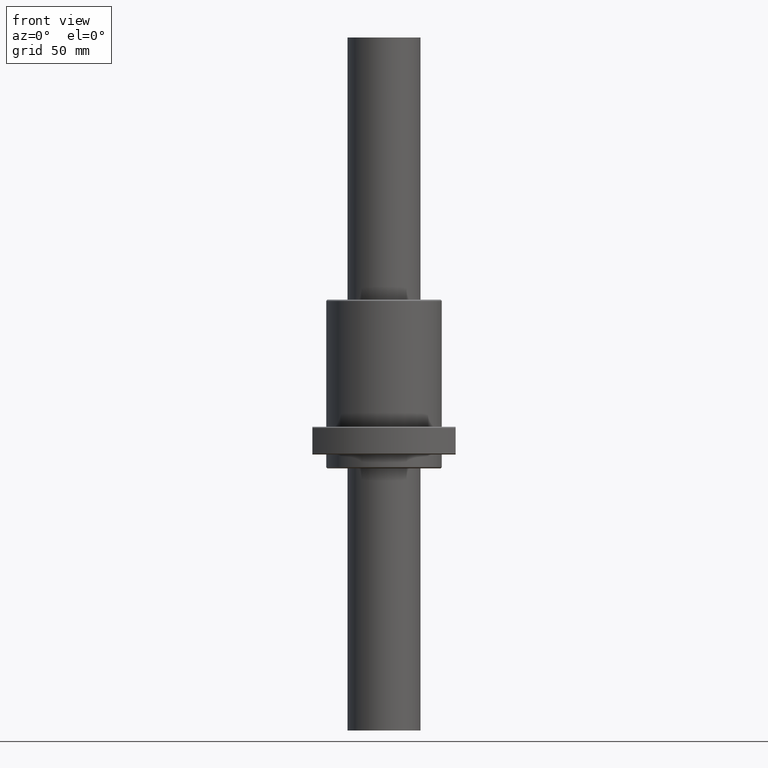
[diagram: clean part render]
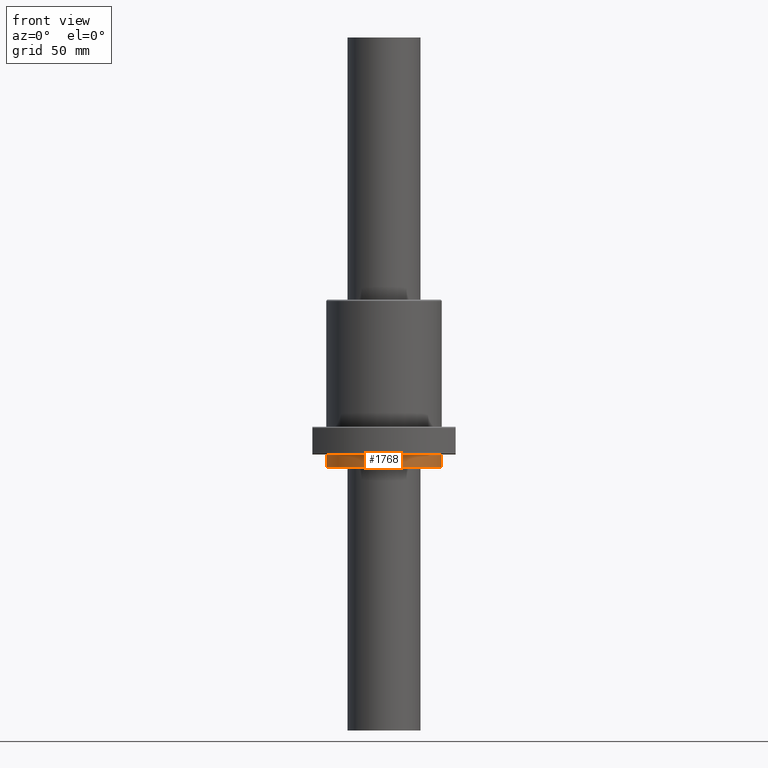
[diagram: same view with one face highlighted and labeled with its STEP entity id]
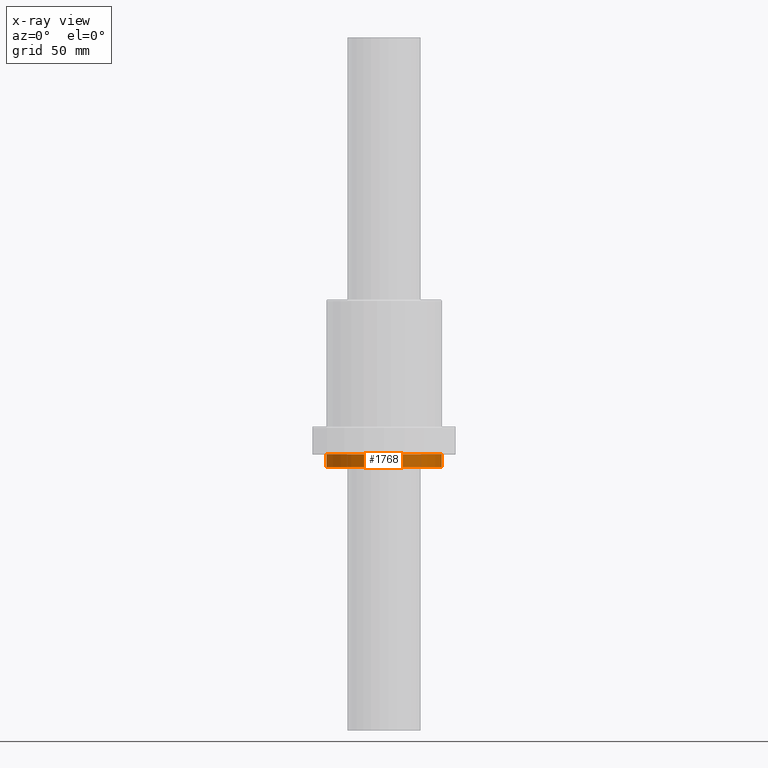
[diagram: x-ray of the same camera — body ghosted, the highlighted face saturated]
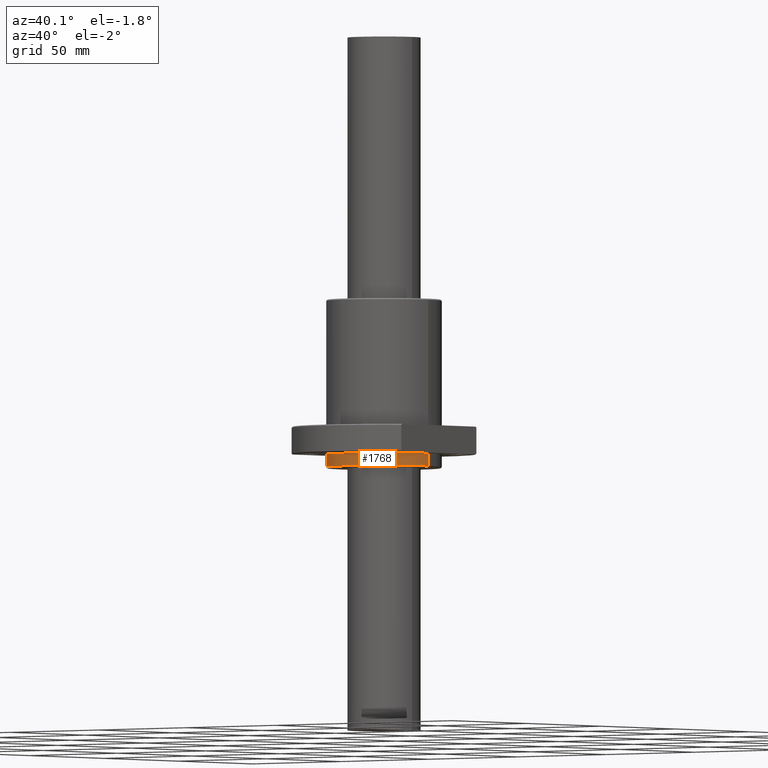
[diagram: same view with one face highlighted and labeled with its STEP entity id]
A machine part, front view. The second image highlights one B-rep face of the part: STEP entity #1768.
The next image is the same camera in x-ray: the body ghosted, the highlighted face saturated — about 0% of this face is hidden behind the body in this view.
A second angle (auxiliary view) of the same face is appended — the face is thin or edge-on in the first view.
In plain terms, the highlighted cylindrical surface (partial cylindrical patch) has radius 25 mm, axis along (0, 0, -1).
Its self-contained STEP definition (entity closure, byte-faithful):
#40 = CARTESIAN_POINT ( 'NONE',  ( -24.99999610000000100, 0.0000000000000000000, -0.5000000000000000000 ) ) ;
#73 = DIRECTION ( 'NONE',  ( 1.000000000000000000, 0.0000000000000000000, 0.0000000000000000000 ) ) ;
#98 = CIRCLE ( 'NONE', #1676, 24.99999610000000100 ) ;
#102 = LINE ( 'NONE', #614, #392 ) ;
#284 = ORIENTED_EDGE ( 'NONE', *, *, #300, .T. ) ;
#300 = EDGE_CURVE ( 'NONE', #514, #1176, #565, .T. ) ;
#330 = LINE ( 'NONE', #671, #915 ) ;
#377 = DIRECTION ( 'NONE',  ( 0.0000000000000000000, 0.0000000000000000000, 1.000000000000000000 ) ) ;
#392 = VECTOR ( 'NONE', #959, 1000.000000000000000 ) ;
#467 = ORIENTED_EDGE ( 'NONE', *, *, #1117, .F. ) ;
#514 = VERTEX_POINT ( 'NONE', #748 ) ;
#565 = CIRCLE ( 'NONE', #1269, 24.99999610000000100 ) ;
#596 = VERTEX_POINT ( 'NONE', #1596 ) ;
#614 = CARTESIAN_POINT ( 'NONE',  ( 24.99999610000000100, 0.0000000000000000000, -5.999994000000000000 ) ) ;
#671 = CARTESIAN_POINT ( 'NONE',  ( -24.99999610000000100, 3.061616520256131400E-015, -5.999994000000000000 ) ) ;
#748 = CARTESIAN_POINT ( 'NONE',  ( -24.99999610000000100, 3.061616520256131400E-015, -5.999994000000000000 ) ) ;
#779 = DIRECTION ( 'NONE',  ( 1.000000000000000000, 0.0000000000000000000, 0.0000000000000000000 ) ) ;
#806 = ORIENTED_EDGE ( 'NONE', *, *, #1159, .T. ) ;
#915 = VECTOR ( 'NONE', #377, 1000.000000000000000 ) ;
#952 = DIRECTION ( 'NONE',  ( 0.0000000000000000000, 0.0000000000000000000, 1.000000000000000000 ) ) ;
#959 = DIRECTION ( 'NONE',  ( 0.0000000000000000000, 0.0000000000000000000, 1.000000000000000000 ) ) ;
#1082 = CARTESIAN_POINT ( 'NONE',  ( 24.99999610000000100, 0.0000000000000000000, -5.999994000000000000 ) ) ;
#1098 = CARTESIAN_POINT ( 'NONE',  ( 0.0000000000000000000, 0.0000000000000000000, -0.5000000000000000000 ) ) ;
#1117 = EDGE_CURVE ( 'NONE', #514, #1403, #330, .T. ) ;
#1159 = EDGE_CURVE ( 'NONE', #1176, #596, #102, .T. ) ;
#1176 = VERTEX_POINT ( 'NONE', #1082 ) ;
#1269 = AXIS2_PLACEMENT_3D ( 'NONE', #1548, #952, #779 ) ;
#1299 = DIRECTION ( 'NONE',  ( 0.0000000000000000000, 0.0000000000000000000, 1.000000000000000000 ) ) ;
#1347 = EDGE_LOOP ( 'NONE', ( #467, #284, #806, #1531 ) ) ;
#1403 = VERTEX_POINT ( 'NONE', #40 ) ;
#1482 = CARTESIAN_POINT ( 'NONE',  ( 0.0000000000000000000, 0.0000000000000000000, -5.999994000000000000 ) ) ;
#1501 = DIRECTION ( 'NONE',  ( 1.000000000000000000, 0.0000000000000000000, 0.0000000000000000000 ) ) ;
#1531 = ORIENTED_EDGE ( 'NONE', *, *, #1582, .F. ) ;
#1548 = CARTESIAN_POINT ( 'NONE',  ( 0.0000000000000000000, 0.0000000000000000000, -5.999994000000000000 ) ) ;
#1582 = EDGE_CURVE ( 'NONE', #1403, #596, #98, .T. ) ;
#1596 = CARTESIAN_POINT ( 'NONE',  ( 24.99999610000000100, 3.061616520256131800E-015, -0.5000000000000000000 ) ) ;
#1676 = AXIS2_PLACEMENT_3D ( 'NONE', #1098, #1299, #1501 ) ;
#1695 = FACE_OUTER_BOUND ( 'NONE', #1347, .T. ) ;
#1703 = DIRECTION ( 'NONE',  ( 0.0000000000000000000, 0.0000000000000000000, 1.000000000000000000 ) ) ;
#1722 = AXIS2_PLACEMENT_3D ( 'NONE', #1482, #1703, #73 ) ;
#1752 = CYLINDRICAL_SURFACE ( 'NONE', #1722, 24.99999610000000100 ) ;
#1768 = ADVANCED_FACE ( 'NONE', ( #1695 ), #1752, .T. ) ;